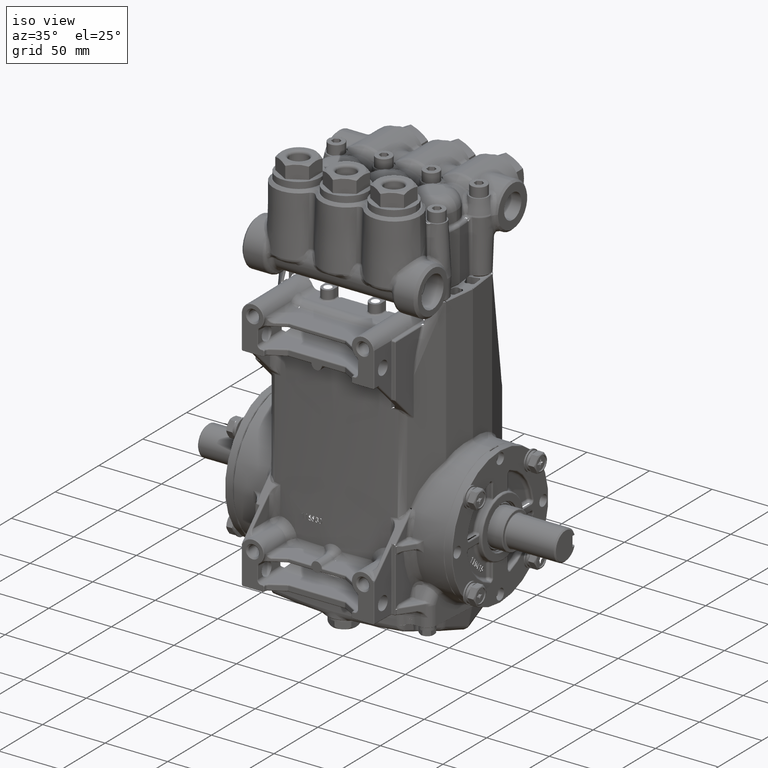
[diagram: clean part render]
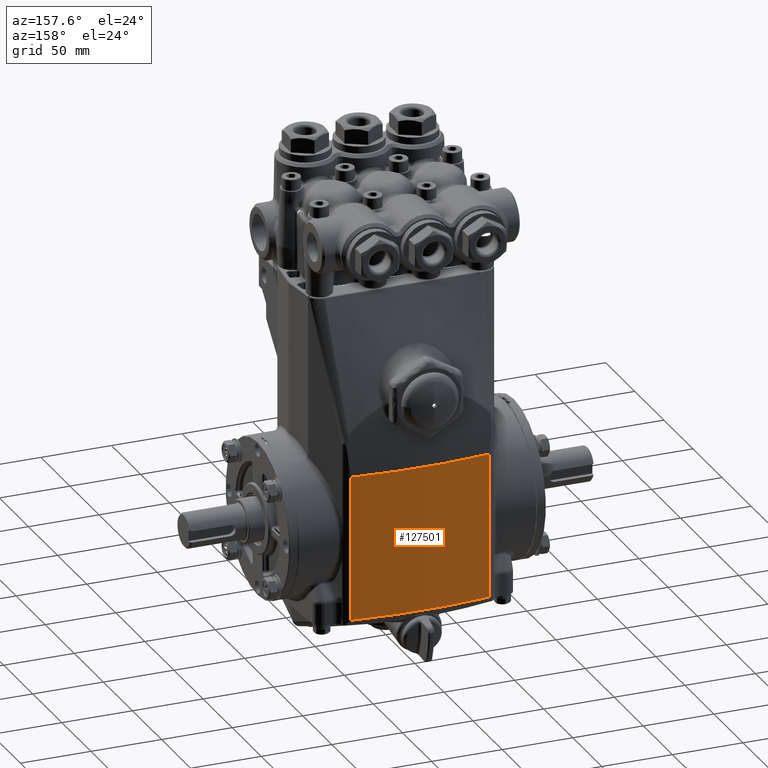
[diagram: tour spotlight — one face highlighted and labeled with its STEP entity id]
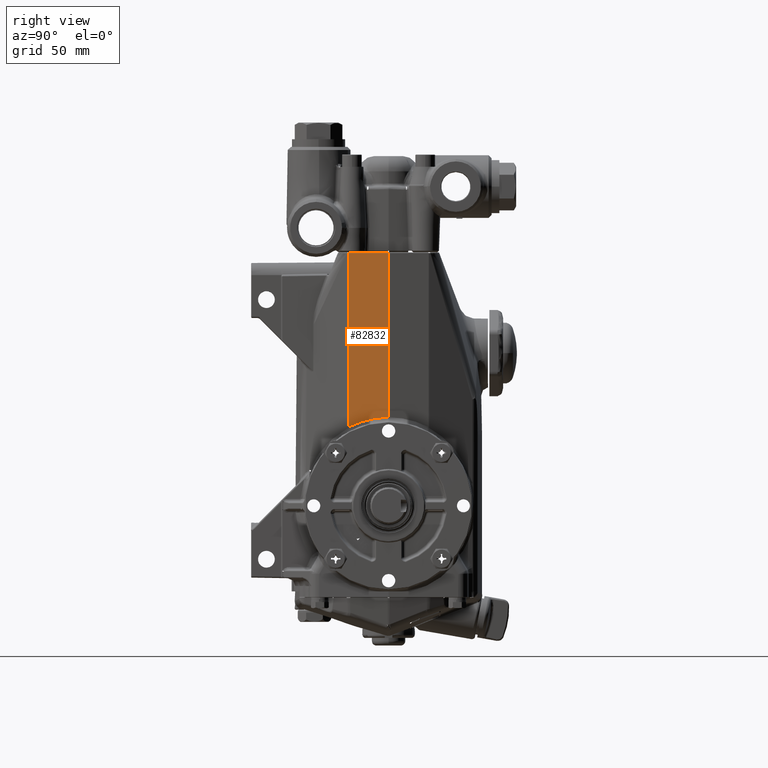
[diagram: tour spotlight — one face highlighted and labeled with its STEP entity id]
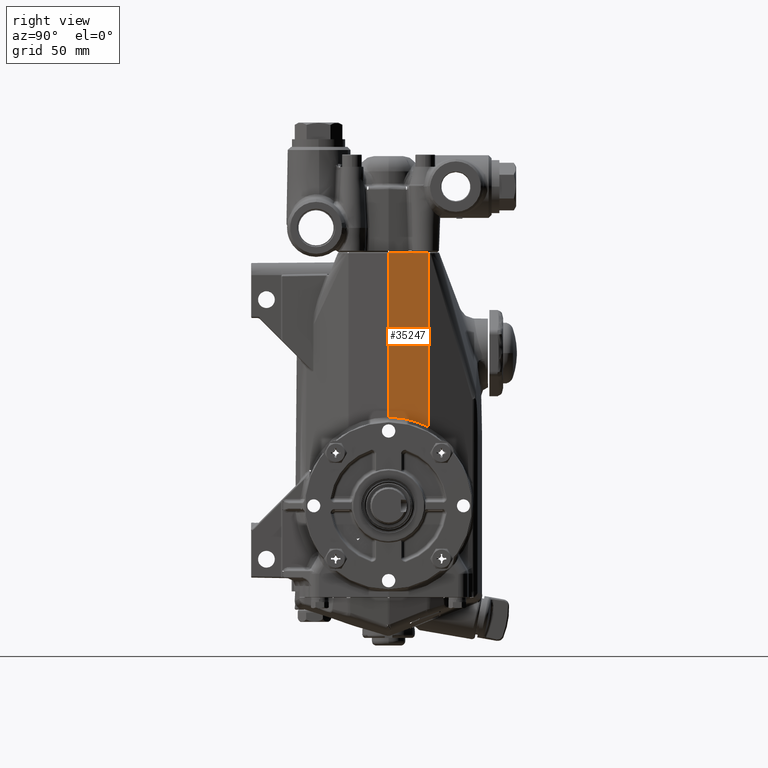
[diagram: tour spotlight — one face highlighted and labeled with its STEP entity id]
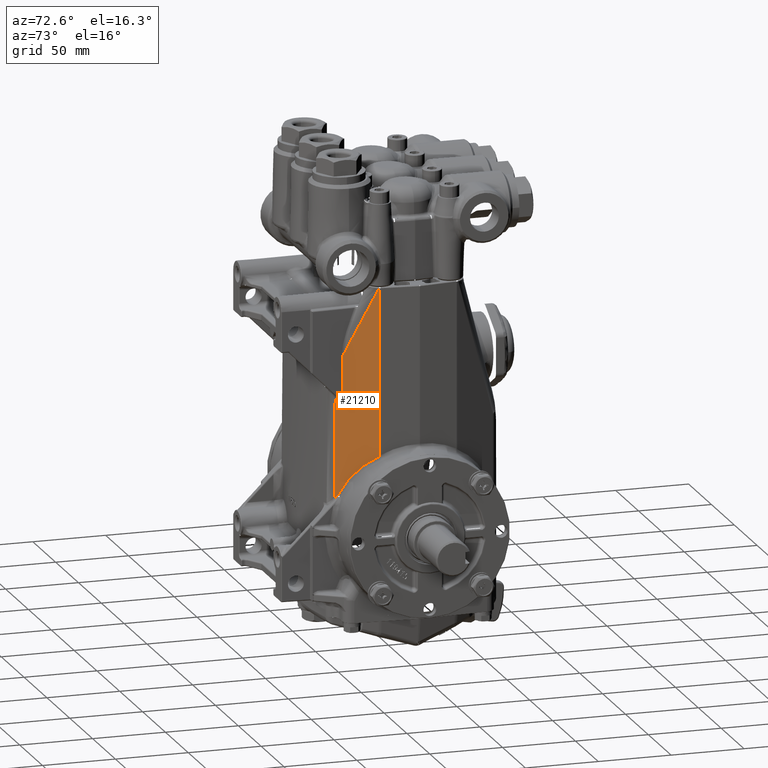
[diagram: tour spotlight — one face highlighted and labeled with its STEP entity id]
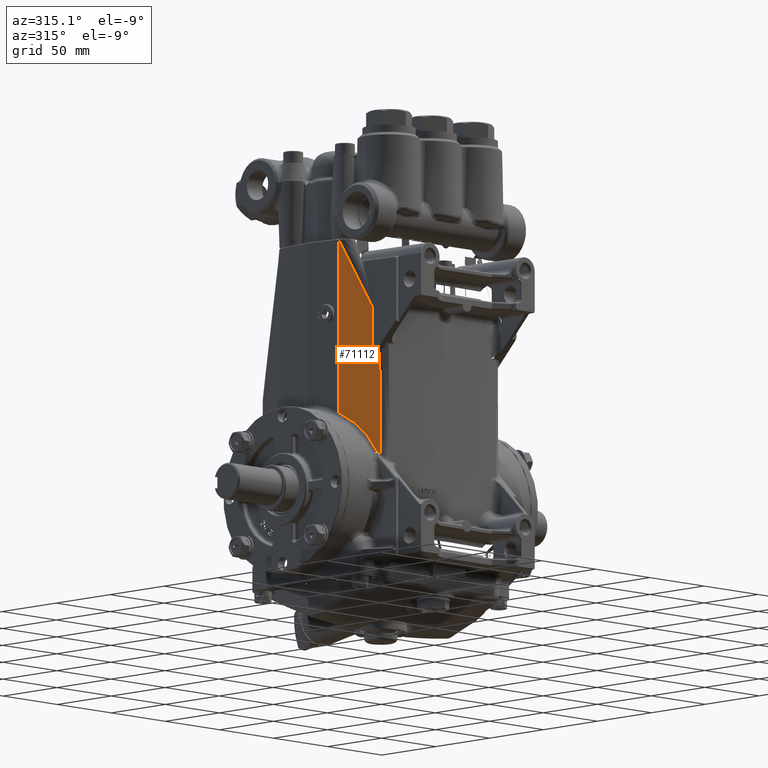
[diagram: tour spotlight — one face highlighted and labeled with its STEP entity id]
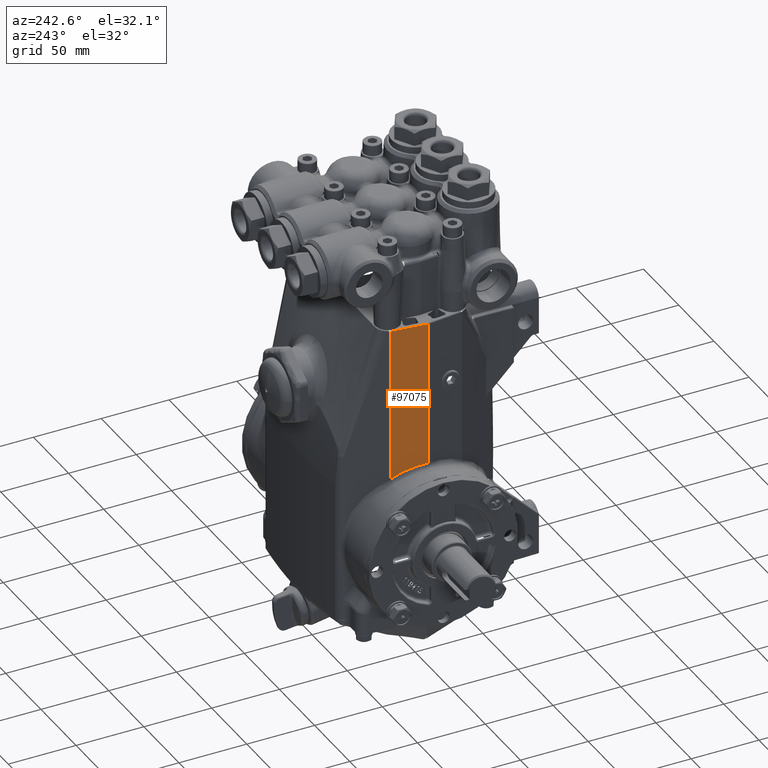
[diagram: tour spotlight — one face highlighted and labeled with its STEP entity id]
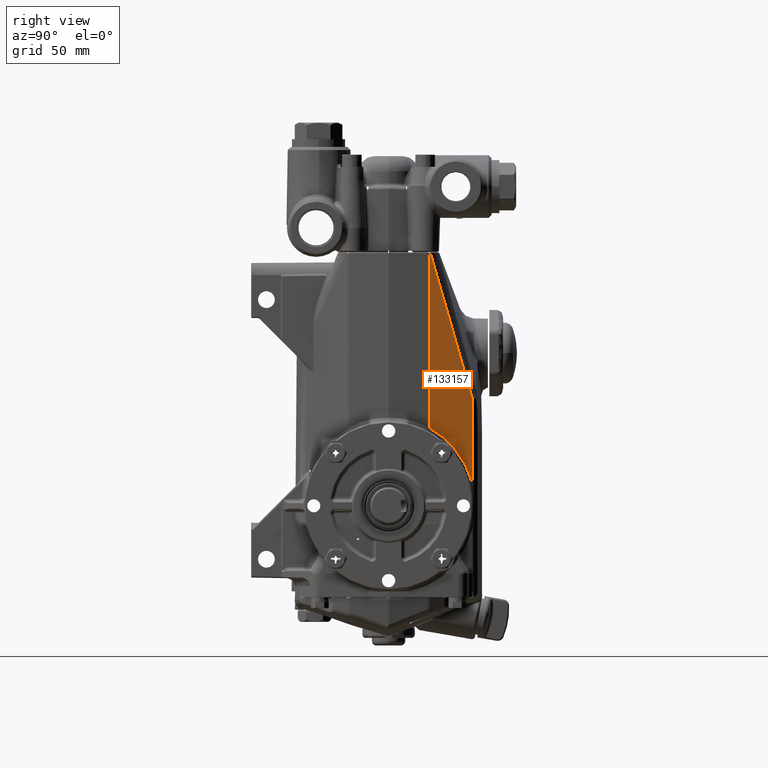
[diagram: tour spotlight — one face highlighted and labeled with its STEP entity id]
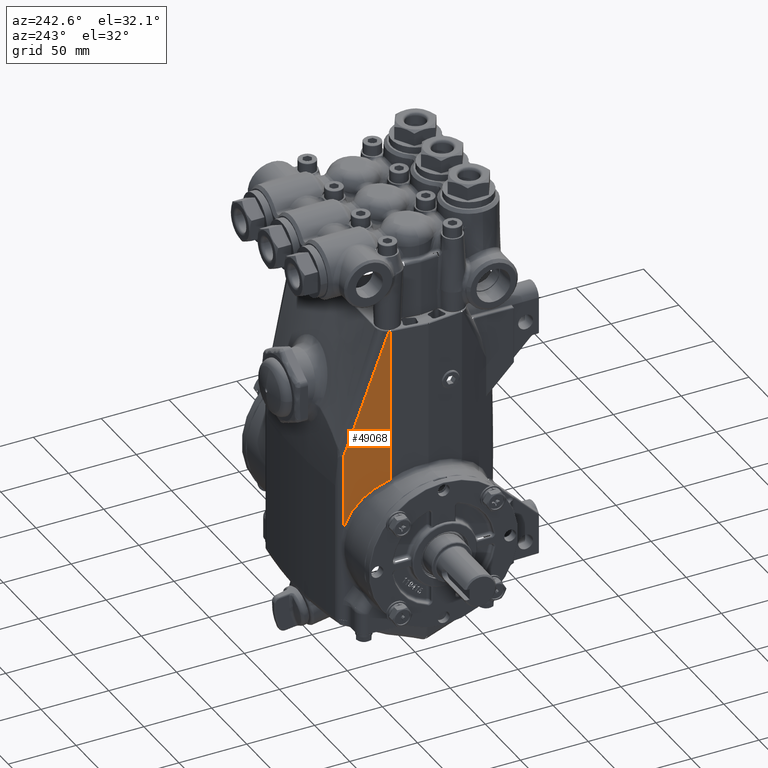
[diagram: tour spotlight — one face highlighted and labeled with its STEP entity id]
A machine part: a face-by-face anatomy tour. The part has 2640 B-rep faces; the first image is the clean iso view, then the 8 largest visible faces are spotlighted one at a time (largest first), each with its STEP entity span.

Face 1 — auxiliary view, entity #127501. In plain terms, the highlighted cylindrical surface (partial cylindrical patch) has radius 400 mm, axis along (-0, -0, -1).
Definition (entity closure, byte-faithful):
#7919 = AXIS2_PLACEMENT_3D ( 'NONE', #78113, #97040, #64852 ) ;
#8009 = ORIENTED_EDGE ( 'NONE', *, *, #24587, .T. ) ;
#8406 = FACE_OUTER_BOUND ( 'NONE', #83449, .T. ) ;
#12529 = LINE ( 'NONE', #119611, #132363 ) ;
#14948 = EDGE_CURVE ( 'NONE', #99284, #66368, #78595, .T. ) ;
#16690 = VERTEX_POINT ( 'NONE', #54375 ) ;
#24587 = EDGE_CURVE ( 'NONE', #16690, #71763, #119618, .T. ) ;
#35435 = EDGE_CURVE ( 'NONE', #71763, #66368, #122987, .T. ) ;
#37587 = CARTESIAN_POINT ( 'NONE',  ( 1.927892502559934051, 2.302806923614977741, 1.830708661417320915 ) ) ;
#38266 = CARTESIAN_POINT ( 'NONE',  ( -1.927892502559932941, 2.302806923614977741, 6.535433070866142558 ) ) ;
#54303 = CARTESIAN_POINT ( 'NONE',  ( -1.927892502559934051, 2.302806923614977741, 1.830708661417320915 ) ) ;
#54375 = CARTESIAN_POINT ( 'NONE',  ( 1.927892502559933607, 2.302806923614975521, -2.204724409448818978 ) ) ;
#57026 = ORIENTED_EDGE ( 'NONE', *, *, #127595, .F. ) ;
#60690 = DIRECTION ( 'NONE',  ( 0.000000000000000000, 0.000000000000000000, 1.000000000000000000 ) ) ;
#60744 = CARTESIAN_POINT ( 'NONE',  ( -1.927892502559933607, 2.302806923614975521, -2.204724409448818978 ) ) ;
#61545 = ORIENTED_EDGE ( 'NONE', *, *, #35435, .T. ) ;
#62686 = DIRECTION ( 'NONE',  ( -0.000000000000000000, -0.000000000000000000, 1.000000000000000000 ) ) ;
#64852 = DIRECTION ( 'NONE',  ( 1.000000000000000000, 0.000000000000000000, 0.000000000000000000 ) ) ;
#66368 = VERTEX_POINT ( 'NONE', #54303 ) ;
#71763 = VERTEX_POINT ( 'NONE', #60744 ) ;
#73856 = CARTESIAN_POINT ( 'NONE',  ( 0.000000000000000000, -13.32677165354330917, 1.830708661417320915 ) ) ;
#74166 = CYLINDRICAL_SURFACE ( 'NONE', #89896, 15.74803149606299080 ) ;
#78113 = CARTESIAN_POINT ( 'NONE',  ( 0.000000000000000000, -13.32677165354330917, -2.204724409448818978 ) ) ;
#78595 = CIRCLE ( 'NONE', #129939, 15.74803149606299257 ) ;
#82613 = CARTESIAN_POINT ( 'NONE',  ( 0.000000000000000000, -13.32677165354330917, 6.535433070866142558 ) ) ;
#83449 = EDGE_LOOP ( 'NONE', ( #130293, #57026, #8009, #61545 ) ) ;
#89896 = AXIS2_PLACEMENT_3D ( 'NONE', #82613, #136500, #105698 ) ;
#96545 = DIRECTION ( 'NONE',  ( -0.000000000000000000, 0.000000000000000000, 1.000000000000000000 ) ) ;
#97040 = DIRECTION ( 'NONE',  ( 0.000000000000000000, 0.000000000000000000, 1.000000000000000000 ) ) ;
#99284 = VERTEX_POINT ( 'NONE', #37587 ) ;
#105698 = DIRECTION ( 'NONE',  ( -1.000000000000000000, 0.000000000000000000, 0.000000000000000000 ) ) ;
#119611 = CARTESIAN_POINT ( 'NONE',  ( 1.927892502559932941, 2.302806923614977741, 6.535433070866142558 ) ) ;
#119618 = CIRCLE ( 'NONE', #7919, 15.74803149606299080 ) ;
#122987 = LINE ( 'NONE', #38266, #129648 ) ;
#126391 = DIRECTION ( 'NONE',  ( 1.000000000000000000, 0.000000000000000000, 0.000000000000000000 ) ) ;
#127501 = ADVANCED_FACE ( 'NONE', ( #8406 ), #74166, .T. ) ;
#127595 = EDGE_CURVE ( 'NONE', #16690, #99284, #12529, .T. ) ;
#129648 = VECTOR ( 'NONE', #60690, 39.37007874015748143 ) ;
#129939 = AXIS2_PLACEMENT_3D ( 'NONE', #73856, #62686, #126391 ) ;
#130293 = ORIENTED_EDGE ( 'NONE', *, *, #14948, .F. ) ;
#132363 = VECTOR ( 'NONE', #96545, 39.37007874015748143 ) ;
#136500 = DIRECTION ( 'NONE',  ( -0.000000000000000000, -0.000000000000000000, -1.000000000000000000 ) ) ;

Face 2 — right view, entity #82832. In plain terms, the highlighted planar face has unit normal (-0.9932, 0.1166, 0).
Definition (entity closure, byte-faithful):
#1004 = CARTESIAN_POINT ( 'NONE',  ( 2.717346821947831170, 1.734800175810613622E-15, 6.535433070866142558 ) ) ;
#8959 = CARTESIAN_POINT ( 'NONE',  ( 2.716268660788596634, -0.009182339206149817135, 6.515748031496061188 ) ) ;
#9581 = DIRECTION ( 'NONE',  ( 0.1166157079181238954, 0.9931771124360219138, 0.000000000000000000 ) ) ;
#19462 = CARTESIAN_POINT ( 'NONE',  ( 2.716268660788596634, -0.009182339206149817135, 2.283349175545158261 ) ) ;
#22597 = LINE ( 'NONE', #65315, #102756 ) ;
#29051 = VERTEX_POINT ( 'NONE', #100500 ) ;
#32448 = PLANE ( 'NONE',  #62443 ) ;
#35059 = VERTEX_POINT ( 'NONE', #43714 ) ;
#39069 = CARTESIAN_POINT ( 'NONE',  ( 2.634086722082800591, -0.7090985171817205668, 2.194941583661010664 ) ) ;
#41138 = CARTESIAN_POINT ( 'NONE',  ( 2.596958048149761833, -1.025311056846892166, 2.033350361800958517 ) ) ;
#41772 = LINE ( 'NONE', #105486, #89707 ) ;
#43714 = CARTESIAN_POINT ( 'NONE',  ( 2.596958048149761833, -1.025311056846892166, 2.033350361800958517 ) ) ;
#48451 = ORIENTED_EDGE ( 'NONE', *, *, #71875, .F. ) ;
#48984 = ORIENTED_EDGE ( 'NONE', *, *, #135861, .F. ) ;
#50313 = VECTOR ( 'NONE', #68325, 39.37007874015748143 ) ;
#52763 = DIRECTION ( 'NONE',  ( 0.1166157079181238954, 0.9931771124360219138, 0.000000000000000000 ) ) ;
#54334 = ORIENTED_EDGE ( 'NONE', *, *, #65986, .F. ) ;
#59069 = VERTEX_POINT ( 'NONE', #66978 ) ;
#62443 = AXIS2_PLACEMENT_3D ( 'NONE', #1004, #65361, #52763 ) ;
#65315 = CARTESIAN_POINT ( 'NONE',  ( 2.596958048149761833, -1.025311056846892166, 6.535433070866142558 ) ) ;
#65361 = DIRECTION ( 'NONE',  ( -0.9931771124360221359, 0.1166157079181239231, 0.000000000000000000 ) ) ;
#65986 = EDGE_CURVE ( 'NONE', #35059, #59069, #22597, .T. ) ;
#66978 = CARTESIAN_POINT ( 'NONE',  ( 2.596958048149761833, -1.025311056846892166, 6.515748031496061188 ) ) ;
#68325 = DIRECTION ( 'NONE',  ( 0.000000000000000000, 0.000000000000000000, -1.000000000000000000 ) ) ;
#68995 = CARTESIAN_POINT ( 'NONE',  ( 2.716268660788596634, -0.009182339206149817135, 6.535433070866142558 ) ) ;
#71875 = EDGE_CURVE ( 'NONE', #59069, #124047, #41772, .T. ) ;
#73338 = CARTESIAN_POINT ( 'NONE',  ( 2.674575045852474631, -0.3642729597433267963, 2.279779241343228957 ) ) ;
#74557 =( BOUNDED_CURVE ( )  B_SPLINE_CURVE ( 3, ( #19462, #73338, #39069, #41138 ),
 .UNSPECIFIED., .F., .F. ) 
 B_SPLINE_CURVE_WITH_KNOTS ( ( 4, 4 ),
 ( 1.580849574406080205, 2.043221746822089901 ),
 .UNSPECIFIED. ) 
 CURVE ( )  GEOMETRIC_REPRESENTATION_ITEM ( )  RATIONAL_B_SPLINE_CURVE ( ( 1.000000000000000000, 0.9822635394635153006, 0.9822635394635153006, 1.000000000000000000 ) ) 
 REPRESENTATION_ITEM ( '' )  );
#82832 = ADVANCED_FACE ( 'NONE', ( #118531 ), #32448, .F. ) ;
#89707 = VECTOR ( 'NONE', #9581, 39.37007874015748854 ) ;
#89997 = LINE ( 'NONE', #68995, #50313 ) ;
#100500 = CARTESIAN_POINT ( 'NONE',  ( 2.716268660788596634, -0.009182339206149817135, 2.283349175545158261 ) ) ;
#102756 = VECTOR ( 'NONE', #107999, 39.37007874015748143 ) ;
#105486 = CARTESIAN_POINT ( 'NONE',  ( 2.716268660788596634, -0.009182339206149740807, 6.515748031496061188 ) ) ;
#107999 = DIRECTION ( 'NONE',  ( -0.000000000000000000, -0.000000000000000000, 1.000000000000000000 ) ) ;
#118531 = FACE_OUTER_BOUND ( 'NONE', #131586, .T. ) ;
#124047 = VERTEX_POINT ( 'NONE', #8959 ) ;
#124739 = ORIENTED_EDGE ( 'NONE', *, *, #134673, .F. ) ;
#131586 = EDGE_LOOP ( 'NONE', ( #48984, #48451, #54334, #124739 ) ) ;
#134673 = EDGE_CURVE ( 'NONE', #29051, #35059, #74557, .T. ) ;
#135861 = EDGE_CURVE ( 'NONE', #124047, #29051, #89997, .T. ) ;

Face 3 — right view, entity #35247. In plain terms, the highlighted planar face has unit normal (-0.9932, -0.1166, 0).
Definition (entity closure, byte-faithful):
#2988 = CARTESIAN_POINT ( 'NONE',  ( 2.716268660788596634, 0.009182339206153264030, 6.535433070866142558 ) ) ;
#12337 = ORIENTED_EDGE ( 'NONE', *, *, #65203, .F. ) ;
#12521 = CARTESIAN_POINT ( 'NONE',  ( 2.596958048149761833, 1.025311056846890612, 2.033350361800960293 ) ) ;
#20898 = DIRECTION ( 'NONE',  ( 0.000000000000000000, 0.000000000000000000, -1.000000000000000000 ) ) ;
#24419 = CARTESIAN_POINT ( 'NONE',  ( 2.596958048149761833, 1.025311056846890612, 2.033350361800960293 ) ) ;
#24992 = DIRECTION ( 'NONE',  ( -0.1166157079181241174, 0.9931771124360219138, 0.000000000000000000 ) ) ;
#25176 =( BOUNDED_CURVE ( )  B_SPLINE_CURVE ( 3, ( #24419, #89490, #36304, #109834 ),
 .UNSPECIFIED., .F., .F. ) 
 B_SPLINE_CURVE_WITH_KNOTS ( ( 4, 4 ),
 ( 4.239963560357496775, 4.702335732773504695 ),
 .UNSPECIFIED. ) 
 CURVE ( )  GEOMETRIC_REPRESENTATION_ITEM ( )  RATIONAL_B_SPLINE_CURVE ( ( 1.000000000000000000, 0.9822635394635153006, 0.9822635394635153006, 1.000000000000000000 ) ) 
 REPRESENTATION_ITEM ( '' )  );
#29167 = CARTESIAN_POINT ( 'NONE',  ( 2.716268660788596634, 0.009182339206153264030, 6.515748031496061188 ) ) ;
#29471 = ORIENTED_EDGE ( 'NONE', *, *, #69577, .F. ) ;
#30688 = LINE ( 'NONE', #42584, #98415 ) ;
#35247 = ADVANCED_FACE ( 'NONE', ( #35966 ), #100366, .F. ) ;
#35966 = FACE_OUTER_BOUND ( 'NONE', #47254, .T. ) ;
#36304 = CARTESIAN_POINT ( 'NONE',  ( 2.674575045852474187, 0.3642729597433290167, 2.279779241343228069 ) ) ;
#36881 = CARTESIAN_POINT ( 'NONE',  ( 2.596958048149761833, 1.025311056846890612, 6.515748031496061188 ) ) ;
#40224 = AXIS2_PLACEMENT_3D ( 'NONE', #101064, #58381, #121384 ) ;
#42584 = CARTESIAN_POINT ( 'NONE',  ( 2.596958048149761833, 1.025311056846890612, 6.535433070866142558 ) ) ;
#45656 = DIRECTION ( 'NONE',  ( -0.000000000000000000, -0.000000000000000000, 1.000000000000000000 ) ) ;
#45760 = VERTEX_POINT ( 'NONE', #111884 ) ;
#47254 = EDGE_LOOP ( 'NONE', ( #29471, #111685, #12337, #74401 ) ) ;
#56160 = LINE ( 'NONE', #2988, #102660 ) ;
#58381 = DIRECTION ( 'NONE',  ( -0.9931771124360220249, -0.1166157079181241313, 0.000000000000000000 ) ) ;
#65203 = EDGE_CURVE ( 'NONE', #45760, #82399, #56160, .T. ) ;
#69577 = EDGE_CURVE ( 'NONE', #135208, #127090, #30688, .T. ) ;
#74401 = ORIENTED_EDGE ( 'NONE', *, *, #77807, .F. ) ;
#77483 = VECTOR ( 'NONE', #24992, 39.37007874015748854 ) ;
#77807 = EDGE_CURVE ( 'NONE', #127090, #45760, #25176, .T. ) ;
#82399 = VERTEX_POINT ( 'NONE', #29167 ) ;
#88691 = LINE ( 'NONE', #36881, #77483 ) ;
#89490 = CARTESIAN_POINT ( 'NONE',  ( 2.634086722082800147, 0.7090985171817213439, 2.194941583661010220 ) ) ;
#98335 = EDGE_CURVE ( 'NONE', #82399, #135208, #88691, .T. ) ;
#98415 = VECTOR ( 'NONE', #20898, 39.37007874015748143 ) ;
#100366 = PLANE ( 'NONE',  #40224 ) ;
#101064 = CARTESIAN_POINT ( 'NONE',  ( 2.595635456472273450, 1.036575129300169706, 6.535433070866142558 ) ) ;
#102660 = VECTOR ( 'NONE', #45656, 39.37007874015748143 ) ;
#109834 = CARTESIAN_POINT ( 'NONE',  ( 2.716268660788596634, 0.009182339206153264030, 2.283349175545157816 ) ) ;
#111685 = ORIENTED_EDGE ( 'NONE', *, *, #98335, .F. ) ;
#111884 = CARTESIAN_POINT ( 'NONE',  ( 2.716268660788596634, 0.009182339206153264030, 2.283349175545157816 ) ) ;
#121384 = DIRECTION ( 'NONE',  ( -0.1166157079181241174, 0.9931771124360219138, 0.000000000000000000 ) ) ;
#127090 = VERTEX_POINT ( 'NONE', #12521 ) ;
#130325 = CARTESIAN_POINT ( 'NONE',  ( 2.596958048149761833, 1.025311056846890612, 6.515748031496061188 ) ) ;
#135208 = VERTEX_POINT ( 'NONE', #130325 ) ;

Face 4 — auxiliary view, entity #21210. In plain terms, the highlighted planar face has unit normal (-0.9199, 0.3922, 0).
Definition (entity closure, byte-faithful):
#4274 = VERTEX_POINT ( 'NONE', #42872 ) ;
#8241 = VERTEX_POINT ( 'NONE', #128072 ) ;
#11964 = B_SPLINE_CURVE_WITH_KNOTS ( 'NONE', 3,
 ( #114744, #30008, #72736, #104913, #60869, #82534, #103562, #125241, #17477, #73398 ),
 .UNSPECIFIED., .F., .F.,
 ( 4, 3, 3, 4 ),
 ( 0.4066979116981916387, 0.4324590888153141965, 0.5895890021034427830, 0.5979794710454728879 ),
 .UNSPECIFIED. ) ;
#13276 = ORIENTED_EDGE ( 'NONE', *, *, #54741, .F. ) ;
#17215 = CARTESIAN_POINT ( 'NONE',  ( 2.138993832765264891, -2.107703135970783848, 3.533790478023204784 ) ) ;
#17477 = CARTESIAN_POINT ( 'NONE',  ( 2.580032520508785510, -1.073174380943301420, 6.488274339080471798 ) ) ;
#18651 = AXIS2_PLACEMENT_3D ( 'NONE', #20524, #117100, #21214 ) ;
#19937 = CARTESIAN_POINT ( 'NONE',  ( 2.128387853620480108, -2.132581203826097838, 0.8555136966284823119 ) ) ;
#20524 = CARTESIAN_POINT ( 'NONE',  ( 2.595635456472272562, -1.036575129300173037, 6.535433070866142558 ) ) ;
#21210 = ADVANCED_FACE ( 'NONE', ( #126930 ), #31000, .F. ) ;
#21214 = DIRECTION ( 'NONE',  ( 0.3921676722171311691, 0.9198937530322708334, 0.000000000000000000 ) ) ;
#21787 = LINE ( 'NONE', #115626, #53622 ) ;
#22858 = CARTESIAN_POINT ( 'NONE',  ( 2.591187704889624133, -1.047008061909806331, 2.004706045346182908 ) ) ;
#29412 = VERTEX_POINT ( 'NONE', #129597 ) ;
#30008 = CARTESIAN_POINT ( 'NONE',  ( 2.231858953714732863, -1.889872726459866037, 4.761165765727836785 ) ) ;
#30014 = VERTEX_POINT ( 'NONE', #19937 ) ;
#31000 = PLANE ( 'NONE',  #18651 ) ;
#34679 = CARTESIAN_POINT ( 'NONE',  ( 2.141991423858253807, -2.100671793216303485, 0.8823105689656683959 ) ) ;
#36593 = VERTEX_POINT ( 'NONE', #73419 ) ;
#39055 = VECTOR ( 'NONE', #65513, 39.37007874015748143 ) ;
#42872 = CARTESIAN_POINT ( 'NONE',  ( 2.166223450982955878, -2.043831589511343250, 0.9195003387787634708 ) ) ;
#51762 = ORIENTED_EDGE ( 'NONE', *, *, #63804, .F. ) ;
#51801 = CARTESIAN_POINT ( 'NONE',  ( 2.134597240781764160, -2.118016065329262787, 2.423736094940602381 ) ) ;
#53622 = VECTOR ( 'NONE', #105133, 39.37007874015748143 ) ;
#54304 = CARTESIAN_POINT ( 'NONE',  ( 2.128387853620480108, -2.132581203826097838, 0.8555136966284823119 ) ) ;
#54305 = CARTESIAN_POINT ( 'NONE',  ( 2.216614833355293968, -1.925630317109396250, 6.535433070866142558 ) ) ;
#54741 = EDGE_CURVE ( 'NONE', #85803, #8241, #105454, .T. ) ;
#55500 = ORIENTED_EDGE ( 'NONE', *, *, #80805, .F. ) ;
#57832 = CARTESIAN_POINT ( 'NONE',  ( 2.166223450982955878, -2.043831589511343250, 0.9195003387787634708 ) ) ;
#60869 = CARTESIAN_POINT ( 'NONE',  ( 2.355328477833127820, -1.600254657524562196, 5.442022278663460888 ) ) ;
#61649 = CARTESIAN_POINT ( 'NONE',  ( 2.129724929756505958, -2.129444871915043169, 1.193245431040092397 ) ) ;
#63804 = EDGE_CURVE ( 'NONE', #29412, #4274, #122252, .T. ) ;
#64321 = EDGE_CURVE ( 'NONE', #74361, #36593, #71432, .T. ) ;
#64501 = B_SPLINE_CURVE_WITH_KNOTS ( 'NONE', 3,
 ( #135151, #61649, #137207, #70768, #51801, #113471, #124661 ),
 .UNSPECIFIED., .F., .F.,
 ( 4, 3, 4 ),
 ( 0.07773400629815886698, 0.1034704757864033792, 0.1457657046736837714 ),
 .UNSPECIFIED. ) ;
#65512 = CARTESIAN_POINT ( 'NONE',  ( 2.154733538993457653, -2.070783067184847059, 0.9038597242117943908 ) ) ;
#65513 = DIRECTION ( 'NONE',  ( 0.000000000000000000, 0.000000000000000000, 1.000000000000000000 ) ) ;
#66881 = CARTESIAN_POINT ( 'NONE',  ( 2.166223450982955878, -2.043831589511343250, 0.9195003387787634708 ) ) ;
#70148 = EDGE_CURVE ( 'NONE', #4274, #30014, #91971, .T. ) ;
#70768 = CARTESIAN_POINT ( 'NONE',  ( 2.132399469549731919, -2.123171299098305376, 1.868708889887299440 ) ) ;
#71432 = LINE ( 'NONE', #104327, #100237 ) ;
#72130 = DIRECTION ( 'NONE',  ( 0.3921676722171311691, 0.9198937530322708334, 0.000000000000000000 ) ) ;
#72736 = CARTESIAN_POINT ( 'NONE',  ( 2.247103074074171314, -1.854115135810335380, 4.845227470061820974 ) ) ;
#73398 = CARTESIAN_POINT ( 'NONE',  ( 2.584997562200899157, -1.061528059332194740, 6.515653410938162082 ) ) ;
#73419 = CARTESIAN_POINT ( 'NONE',  ( 2.591187704889624133, -1.047008061909806331, 6.515748031496061188 ) ) ;
#74361 = VERTEX_POINT ( 'NONE', #109607 ) ;
#78845 = CARTESIAN_POINT ( 'NONE',  ( 2.400553909150939358, -1.494170972671451825, 1.760832226594646555 ) ) ;
#80805 = EDGE_CURVE ( 'NONE', #8241, #74361, #11964, .T. ) ;
#80830 = ORIENTED_EDGE ( 'NONE', *, *, #83233, .F. ) ;
#82534 = CARTESIAN_POINT ( 'NONE',  ( 2.477121153725040603, -1.314569911801759083, 5.920783091097432838 ) ) ;
#82960 = ORIENTED_EDGE ( 'NONE', *, *, #70148, .F. ) ;
#83233 = EDGE_CURVE ( 'NONE', #36593, #29412, #21787, .T. ) ;
#85803 = VERTEX_POINT ( 'NONE', #109943 ) ;
#90831 = ORIENTED_EDGE ( 'NONE', *, *, #134278, .F. ) ;
#91240 = EDGE_LOOP ( 'NONE', ( #80830, #105943, #55500, #13276, #138118, #90831, #82960, #51762 ) ) ;
#91971 =( BOUNDED_CURVE ( )  B_SPLINE_CURVE ( 3, ( #66881, #65512, #34679, #54304 ),
 .UNSPECIFIED., .F., .T. ) 
 B_SPLINE_CURVE_WITH_KNOTS ( ( 4, 4 ),
 ( 0.6641927721116175354, 1.014875295558136825 ),
 .UNSPECIFIED. ) 
 CURVE ( )  GEOMETRIC_REPRESENTATION_ITEM ( )  RATIONAL_B_SPLINE_CURVE ( ( 1.000000000000000000, 0.9897780434150713624, 0.9897780434150713624, 1.000000000000000000 ) ) 
 REPRESENTATION_ITEM ( '' )  );
#100237 = VECTOR ( 'NONE', #72130, 39.37007874015748143 ) ;
#103562 = CARTESIAN_POINT ( 'NONE',  ( 2.570102437124558215, -1.096467024165516335, 6.433516195365089452 ) ) ;
#104327 = CARTESIAN_POINT ( 'NONE',  ( 2.591187704889624133, -1.047008061909806331, 6.515748031496061188 ) ) ;
#104913 = CARTESIAN_POINT ( 'NONE',  ( 2.262347194433610209, -1.818357545160804944, 4.929289174395804274 ) ) ;
#105133 = DIRECTION ( 'NONE',  ( 0.000000000000000000, 0.000000000000000000, -1.000000000000000000 ) ) ;
#105454 = LINE ( 'NONE', #54305, #39055 ) ;
#105943 = ORIENTED_EDGE ( 'NONE', *, *, #64321, .F. ) ;
#109607 = CARTESIAN_POINT ( 'NONE',  ( 2.584997562200899157, -1.061528059332194740, 6.515653410938162082 ) ) ;
#109943 = CARTESIAN_POINT ( 'NONE',  ( 2.216614833355293968, -1.925630317109396028, 3.507425794507577965 ) ) ;
#110341 = CARTESIAN_POINT ( 'NONE',  ( 2.216614833355293968, -1.925630317109396028, 3.507425794507577965 ) ) ;
#113471 = CARTESIAN_POINT ( 'NONE',  ( 2.136795361413286187, -2.112860011986271935, 2.978763290998678315 ) ) ;
#114744 = CARTESIAN_POINT ( 'NONE',  ( 2.216614833355294412, -1.925630317109396028, 4.677104061393853485 ) ) ;
#115626 = CARTESIAN_POINT ( 'NONE',  ( 2.591187704889624133, -1.047008061909806331, 6.535433070866142558 ) ) ;
#115836 =( BOUNDED_CURVE ( )  B_SPLINE_CURVE ( 3, ( #17215, #122888, #134774, #110341 ),
 .UNSPECIFIED., .F., .F. ) 
 B_SPLINE_CURVE_WITH_KNOTS ( ( 4, 4 ),
 ( 2.219644354624774163, 3.429037800665981628 ),
 .UNSPECIFIED. ) 
 CURVE ( )  GEOMETRIC_REPRESENTATION_ITEM ( )  RATIONAL_B_SPLINE_CURVE ( ( 1.000000000000000000, 0.8817830348324077194, 0.8817830348324077194, 1.000000000000000000 ) ) 
 REPRESENTATION_ITEM ( '' )  );
#116352 = CARTESIAN_POINT ( 'NONE',  ( 2.138993832765264891, -2.107703135970783848, 3.533790478023204784 ) ) ;
#116634 = VERTEX_POINT ( 'NONE', #116352 ) ;
#117100 = DIRECTION ( 'NONE',  ( -0.9198937530322709444, 0.3921676722171312246, 0.000000000000000000 ) ) ;
#120831 = CARTESIAN_POINT ( 'NONE',  ( 2.253661626852426991, -1.838730971947069470, 1.385722222551783789 ) ) ;
#122252 =( BOUNDED_CURVE ( )  B_SPLINE_CURVE ( 3, ( #22858, #78845, #120831, #57832 ),
 .UNSPECIFIED., .F., .T. ) 
 B_SPLINE_CURVE_WITH_KNOTS ( ( 4, 4 ),
 ( 2.070085784873913592, 2.727152290320088657 ),
 .UNSPECIFIED. ) 
 CURVE ( )  GEOMETRIC_REPRESENTATION_ITEM ( )  RATIONAL_B_SPLINE_CURVE ( ( 1.000000000000000000, 0.9643444099698005312, 0.9643444099698005312, 1.000000000000000000 ) ) 
 REPRESENTATION_ITEM ( '' )  );
#122888 = CARTESIAN_POINT ( 'NONE',  ( 2.187272392140987343, -1.994457837285035007, 3.445598852628056985 ) ) ;
#124661 = CARTESIAN_POINT ( 'NONE',  ( 2.138993832765264891, -2.107703135970783848, 3.533790478023204784 ) ) ;
#125241 = CARTESIAN_POINT ( 'NONE',  ( 2.575067478816672306, -1.084820702554408767, 6.460895267222780625 ) ) ;
#126930 = FACE_OUTER_BOUND ( 'NONE', #91240, .T. ) ;
#128072 = CARTESIAN_POINT ( 'NONE',  ( 2.216614833355294412, -1.925630317109396028, 4.677104061393853485 ) ) ;
#129597 = CARTESIAN_POINT ( 'NONE',  ( 2.591187704889624133, -1.047008061909806331, 2.004706045346182908 ) ) ;
#134278 = EDGE_CURVE ( 'NONE', #30014, #116634, #64501, .T. ) ;
#134774 = CARTESIAN_POINT ( 'NONE',  ( 2.216614833355293968, -1.925630317109397360, 3.435632423822571724 ) ) ;
#135151 = CARTESIAN_POINT ( 'NONE',  ( 2.128387853620480108, -2.132581203826097838, 0.8555136966284823119 ) ) ;
#135863 = EDGE_CURVE ( 'NONE', #116634, #85803, #115836, .T. ) ;
#137207 = CARTESIAN_POINT ( 'NONE',  ( 2.131062134967474542, -2.126308237237487742, 1.530977162129229630 ) ) ;
#138118 = ORIENTED_EDGE ( 'NONE', *, *, #135863, .F. ) ;

Face 5 — auxiliary view, entity #71112. In plain terms, the highlighted planar face has unit normal (0.9199, 0.3922, -0).
Definition (entity closure, byte-faithful):
#159 = ORIENTED_EDGE ( 'NONE', *, *, #56667, .T. ) ;
#805 = ORIENTED_EDGE ( 'NONE', *, *, #23155, .T. ) ;
#3544 = CARTESIAN_POINT ( 'NONE',  ( -2.166223450982955878, -2.043831589511343250, 0.9195003387787634708 ) ) ;
#5278 = ORIENTED_EDGE ( 'NONE', *, *, #112582, .T. ) ;
#5679 = CARTESIAN_POINT ( 'NONE',  ( -2.247103074074171314, -1.854115135810335380, 4.845227470061820974 ) ) ;
#5889 = CARTESIAN_POINT ( 'NONE',  ( -2.129724929756505958, -2.129444871915043169, 1.193245431040092397 ) ) ;
#5986 = CARTESIAN_POINT ( 'NONE',  ( -2.591187704889624133, -1.047008061909806331, 2.004706045346182908 ) ) ;
#7045 = CARTESIAN_POINT ( 'NONE',  ( -2.231858953714732863, -1.889872726459866037, 4.761165765727836785 ) ) ;
#8709 = ORIENTED_EDGE ( 'NONE', *, *, #92463, .T. ) ;
#18250 = CARTESIAN_POINT ( 'NONE',  ( -2.216614833355294412, -1.925630317109396028, 4.677104061393853485 ) ) ;
#19377 = CARTESIAN_POINT ( 'NONE',  ( -2.591187704889624133, -1.047008061909806331, 6.515748031496061188 ) ) ;
#19669 = EDGE_CURVE ( 'NONE', #120566, #108112, #51533, .T. ) ;
#23155 = EDGE_CURVE ( 'NONE', #25396, #93455, #54397, .T. ) ;
#24410 = EDGE_CURVE ( 'NONE', #99951, #25396, #108801, .T. ) ;
#25199 = CARTESIAN_POINT ( 'NONE',  ( -2.128387853620480108, -2.132581203826097838, 0.8555136966284823119 ) ) ;
#25396 = VERTEX_POINT ( 'NONE', #93609 ) ;
#25674 = CARTESIAN_POINT ( 'NONE',  ( -2.216614833355294412, -1.925630317109396028, 4.677104061393853485 ) ) ;
#27358 = ORIENTED_EDGE ( 'NONE', *, *, #24410, .T. ) ;
#28470 = LINE ( 'NONE', #19377, #71456 ) ;
#30052 = EDGE_CURVE ( 'NONE', #93455, #31557, #74512, .T. ) ;
#31557 = VERTEX_POINT ( 'NONE', #25674 ) ;
#35018 = CARTESIAN_POINT ( 'NONE',  ( -2.141991423858253807, -2.100671793216303485, 0.8823105689656683959 ) ) ;
#38230 = CARTESIAN_POINT ( 'NONE',  ( -2.400553909150939358, -1.494170972671451825, 1.760832226594646555 ) ) ;
#40599 = CARTESIAN_POINT ( 'NONE',  ( -2.575067478816672306, -1.084820702554408767, 6.460895267222780625 ) ) ;
#42308 = DIRECTION ( 'NONE',  ( 0.000000000000000000, 0.000000000000000000, 1.000000000000000000 ) ) ;
#42783 = PLANE ( 'NONE',  #47173 ) ;
#42867 = CARTESIAN_POINT ( 'NONE',  ( -2.132399469549731919, -2.123171299098305376, 1.868708889887299440 ) ) ;
#43868 = CARTESIAN_POINT ( 'NONE',  ( -2.138993832765264891, -2.107703135970783848, 3.533790478023204784 ) ) ;
#47173 = AXIS2_PLACEMENT_3D ( 'NONE', #85486, #55357, #95985 ) ;
#48906 = CARTESIAN_POINT ( 'NONE',  ( -2.591187704889624133, -1.047008061909806331, 6.535433070866142558 ) ) ;
#49744 = CARTESIAN_POINT ( 'NONE',  ( -2.580032520508785510, -1.073174380943301420, 6.488274339080471798 ) ) ;
#51533 =( BOUNDED_CURVE ( )  B_SPLINE_CURVE ( 3, ( #135529, #38230, #73196, #114523 ),
 .UNSPECIFIED., .F., .T. ) 
 B_SPLINE_CURVE_WITH_KNOTS ( ( 4, 4 ),
 ( 2.070085784873913592, 2.727152290320088657 ),
 .UNSPECIFIED. ) 
 CURVE ( )  GEOMETRIC_REPRESENTATION_ITEM ( )  RATIONAL_B_SPLINE_CURVE ( ( 1.000000000000000000, 0.9643444099698005312, 0.9643444099698005312, 1.000000000000000000 ) ) 
 REPRESENTATION_ITEM ( '' )  );
#52235 = DIRECTION ( 'NONE',  ( -0.3921676722171311691, 0.9198937530322708334, 0.000000000000000000 ) ) ;
#53165 = ORIENTED_EDGE ( 'NONE', *, *, #30052, .T. ) ;
#54397 =( BOUNDED_CURVE ( )  B_SPLINE_CURVE ( 3, ( #43868, #86572, #76051, #118749 ),
 .UNSPECIFIED., .F., .T. ) 
 B_SPLINE_CURVE_WITH_KNOTS ( ( 4, 4 ),
 ( 2.219644354624774163, 3.429037800665981628 ),
 .UNSPECIFIED. ) 
 CURVE ( )  GEOMETRIC_REPRESENTATION_ITEM ( )  RATIONAL_B_SPLINE_CURVE ( ( 1.000000000000000000, 0.8817830348324077194, 0.8817830348324077194, 1.000000000000000000 ) ) 
 REPRESENTATION_ITEM ( '' )  );
#55357 = DIRECTION ( 'NONE',  ( 0.9198937530322709444, 0.3921676722171312246, -0.000000000000000000 ) ) ;
#56667 = EDGE_CURVE ( 'NONE', #108112, #99951, #109571, .T. ) ;
#60253 = CARTESIAN_POINT ( 'NONE',  ( -2.355328477833127820, -1.600254657524562196, 5.442022278663460888 ) ) ;
#66260 = EDGE_CURVE ( 'NONE', #107227, #70882, #28470, .T. ) ;
#70882 = VERTEX_POINT ( 'NONE', #122664 ) ;
#71112 = ADVANCED_FACE ( 'NONE', ( #117664 ), #42783, .F. ) ;
#71424 = CARTESIAN_POINT ( 'NONE',  ( -2.262347194433610209, -1.818357545160804944, 4.929289174395804274 ) ) ;
#71456 = VECTOR ( 'NONE', #52235, 39.37007874015748143 ) ;
#72662 = CARTESIAN_POINT ( 'NONE',  ( -2.584997562200899157, -1.061528059332194740, 6.515653410938162082 ) ) ;
#73196 = CARTESIAN_POINT ( 'NONE',  ( -2.253661626852426991, -1.838730971947069470, 1.385722222551783789 ) ) ;
#74512 = LINE ( 'NONE', #127017, #122124 ) ;
#75066 = CARTESIAN_POINT ( 'NONE',  ( -2.138993832765264891, -2.107703135970783848, 3.533790478023204784 ) ) ;
#76051 = CARTESIAN_POINT ( 'NONE',  ( -2.216614833355293968, -1.925630317109397360, 3.435632423822571724 ) ) ;
#77183 = ORIENTED_EDGE ( 'NONE', *, *, #66260, .T. ) ;
#83249 = EDGE_LOOP ( 'NONE', ( #5278, #133470, #159, #27358, #805, #53165, #8709, #77183 ) ) ;
#84198 = CARTESIAN_POINT ( 'NONE',  ( -2.134597240781764160, -2.118016065329262787, 2.423736094940602381 ) ) ;
#84872 = CARTESIAN_POINT ( 'NONE',  ( -2.136795361413286187, -2.112860011986271935, 2.978763290998678315 ) ) ;
#85486 = CARTESIAN_POINT ( 'NONE',  ( -2.595635456472272562, -1.036575129300173037, 6.535433070866142558 ) ) ;
#86572 = CARTESIAN_POINT ( 'NONE',  ( -2.187272392140987343, -1.994457837285035007, 3.445598852628056985 ) ) ;
#91019 = CARTESIAN_POINT ( 'NONE',  ( -2.584997562200899157, -1.061528059332194740, 6.515653410938162082 ) ) ;
#91228 = CARTESIAN_POINT ( 'NONE',  ( -2.131062134967474542, -2.126308237237487742, 1.530977162129229630 ) ) ;
#92463 = EDGE_CURVE ( 'NONE', #31557, #107227, #107233, .T. ) ;
#93455 = VERTEX_POINT ( 'NONE', #122406 ) ;
#93609 = CARTESIAN_POINT ( 'NONE',  ( -2.138993832765264891, -2.107703135970783848, 3.533790478023204784 ) ) ;
#95985 = DIRECTION ( 'NONE',  ( -0.3921676722171311691, 0.9198937530322708334, 0.000000000000000000 ) ) ;
#97270 = CARTESIAN_POINT ( 'NONE',  ( -2.166223450982955878, -2.043831589511343250, 0.9195003387787634708 ) ) ;
#99951 = VERTEX_POINT ( 'NONE', #131095 ) ;
#101430 = DIRECTION ( 'NONE',  ( 0.000000000000000000, 0.000000000000000000, -1.000000000000000000 ) ) ;
#101771 = CARTESIAN_POINT ( 'NONE',  ( -2.128387853620480108, -2.132581203826097838, 0.8555136966284823119 ) ) ;
#102254 = CARTESIAN_POINT ( 'NONE',  ( -2.477121153725040603, -1.314569911801759083, 5.920783091097432838 ) ) ;
#107227 = VERTEX_POINT ( 'NONE', #72662 ) ;
#107233 = B_SPLINE_CURVE_WITH_KNOTS ( 'NONE', 3,
 ( #18250, #7045, #5679, #71424, #60253, #102254, #134432, #40599, #49744, #91019 ),
 .UNSPECIFIED., .F., .F.,
 ( 4, 3, 3, 4 ),
 ( 0.4066979116981916387, 0.4324590888153141965, 0.5895890021034427830, 0.5979794710454728879 ),
 .UNSPECIFIED. ) ;
#108112 = VERTEX_POINT ( 'NONE', #97270 ) ;
#108801 = B_SPLINE_CURVE_WITH_KNOTS ( 'NONE', 3,
 ( #101771, #5889, #91228, #42867, #84198, #84872, #75066 ),
 .UNSPECIFIED., .F., .F.,
 ( 4, 3, 4 ),
 ( 0.07773400629815886698, 0.1034704757864033792, 0.1457657046736837714 ),
 .UNSPECIFIED. ) ;
#109571 =( BOUNDED_CURVE ( )  B_SPLINE_CURVE ( 3, ( #3544, #111303, #35018, #25199 ),
 .UNSPECIFIED., .F., .T. ) 
 B_SPLINE_CURVE_WITH_KNOTS ( ( 4, 4 ),
 ( 0.6641927721116175354, 1.014875295558136825 ),
 .UNSPECIFIED. ) 
 CURVE ( )  GEOMETRIC_REPRESENTATION_ITEM ( )  RATIONAL_B_SPLINE_CURVE ( ( 1.000000000000000000, 0.9897780434150713624, 0.9897780434150713624, 1.000000000000000000 ) ) 
 REPRESENTATION_ITEM ( '' )  );
#111303 = CARTESIAN_POINT ( 'NONE',  ( -2.154733538993457653, -2.070783067184847059, 0.9038597242117943908 ) ) ;
#112582 = EDGE_CURVE ( 'NONE', #70882, #120566, #113331, .T. ) ;
#113331 = LINE ( 'NONE', #48906, #121525 ) ;
#114523 = CARTESIAN_POINT ( 'NONE',  ( -2.166223450982955878, -2.043831589511343250, 0.9195003387787634708 ) ) ;
#117664 = FACE_OUTER_BOUND ( 'NONE', #83249, .T. ) ;
#118749 = CARTESIAN_POINT ( 'NONE',  ( -2.216614833355293968, -1.925630317109396028, 3.507425794507577965 ) ) ;
#120566 = VERTEX_POINT ( 'NONE', #5986 ) ;
#121525 = VECTOR ( 'NONE', #101430, 39.37007874015748143 ) ;
#122124 = VECTOR ( 'NONE', #42308, 39.37007874015748143 ) ;
#122406 = CARTESIAN_POINT ( 'NONE',  ( -2.216614833355293968, -1.925630317109396028, 3.507425794507577965 ) ) ;
#122664 = CARTESIAN_POINT ( 'NONE',  ( -2.591187704889624133, -1.047008061909806331, 6.515748031496061188 ) ) ;
#127017 = CARTESIAN_POINT ( 'NONE',  ( -2.216614833355293968, -1.925630317109396250, 6.535433070866142558 ) ) ;
#131095 = CARTESIAN_POINT ( 'NONE',  ( -2.128387853620480108, -2.132581203826097838, 0.8555136966284823119 ) ) ;
#133470 = ORIENTED_EDGE ( 'NONE', *, *, #19669, .T. ) ;
#134432 = CARTESIAN_POINT ( 'NONE',  ( -2.570102437124558215, -1.096467024165516335, 6.433516195365089452 ) ) ;
#135529 = CARTESIAN_POINT ( 'NONE',  ( -2.591187704889624133, -1.047008061909806331, 2.004706045346182908 ) ) ;

Face 6 — auxiliary view, entity #97075. In plain terms, the highlighted planar face has unit normal (0.9932, -0.1166, 0).
Definition (entity closure, byte-faithful):
#7337 = DIRECTION ( 'NONE',  ( 0.9931771124360220249, -0.1166157079181241313, 0.000000000000000000 ) ) ;
#9768 = CARTESIAN_POINT ( 'NONE',  ( -2.596958048149761833, 1.025311056846890612, 2.033350361800960293 ) ) ;
#15082 = CARTESIAN_POINT ( 'NONE',  ( -2.596958048149761833, 1.025311056846890612, 6.535433070866142558 ) ) ;
#18683 = EDGE_CURVE ( 'NONE', #90497, #106462, #60577, .T. ) ;
#25733 = ORIENTED_EDGE ( 'NONE', *, *, #91888, .T. ) ;
#34228 = VECTOR ( 'NONE', #106192, 39.37007874015748854 ) ;
#38079 = EDGE_CURVE ( 'NONE', #106462, #130794, #130620, .T. ) ;
#39725 = VERTEX_POINT ( 'NONE', #127946 ) ;
#40890 = PLANE ( 'NONE',  #52791 ) ;
#44019 = CARTESIAN_POINT ( 'NONE',  ( -2.716268660788596634, 0.009182339206153264030, 2.283349175545157816 ) ) ;
#52791 = AXIS2_PLACEMENT_3D ( 'NONE', #82227, #7337, #82917 ) ;
#53129 = CARTESIAN_POINT ( 'NONE',  ( -2.674575045852474187, 0.3642729597433290167, 2.279779241343228069 ) ) ;
#60577 =( BOUNDED_CURVE ( )  B_SPLINE_CURVE ( 3, ( #9768, #87405, #53129, #44019 ),
 .UNSPECIFIED., .F., .T. ) 
 B_SPLINE_CURVE_WITH_KNOTS ( ( 4, 4 ),
 ( 4.239963560357496775, 4.702335732773504695 ),
 .UNSPECIFIED. ) 
 CURVE ( )  GEOMETRIC_REPRESENTATION_ITEM ( )  RATIONAL_B_SPLINE_CURVE ( ( 1.000000000000000000, 0.9822635394635153006, 0.9822635394635153006, 1.000000000000000000 ) ) 
 REPRESENTATION_ITEM ( '' )  );
#62741 = EDGE_LOOP ( 'NONE', ( #65545, #124597, #132008, #25733 ) ) ;
#62811 = CARTESIAN_POINT ( 'NONE',  ( -2.596958048149761833, 1.025311056846890612, 6.515748031496061188 ) ) ;
#65545 = ORIENTED_EDGE ( 'NONE', *, *, #74553, .T. ) ;
#68974 = LINE ( 'NONE', #15082, #128089 ) ;
#74553 = EDGE_CURVE ( 'NONE', #39725, #90497, #68974, .T. ) ;
#82227 = CARTESIAN_POINT ( 'NONE',  ( -2.595635456472273450, 1.036575129300169706, 6.535433070866142558 ) ) ;
#82917 = DIRECTION ( 'NONE',  ( 0.1166157079181241174, 0.9931771124360219138, 0.000000000000000000 ) ) ;
#87405 = CARTESIAN_POINT ( 'NONE',  ( -2.634086722082800147, 0.7090985171817213439, 2.194941583661010220 ) ) ;
#89676 = VECTOR ( 'NONE', #129226, 39.37007874015748143 ) ;
#90497 = VERTEX_POINT ( 'NONE', #137524 ) ;
#91888 = EDGE_CURVE ( 'NONE', #130794, #39725, #125833, .T. ) ;
#95473 = FACE_OUTER_BOUND ( 'NONE', #62741, .T. ) ;
#97075 = ADVANCED_FACE ( 'NONE', ( #95473 ), #40890, .F. ) ;
#105448 = CARTESIAN_POINT ( 'NONE',  ( -2.716268660788596634, 0.009182339206153264030, 6.515748031496061188 ) ) ;
#106192 = DIRECTION ( 'NONE',  ( 0.1166157079181241174, 0.9931771124360219138, 0.000000000000000000 ) ) ;
#106462 = VERTEX_POINT ( 'NONE', #113956 ) ;
#111680 = DIRECTION ( 'NONE',  ( 0.000000000000000000, 0.000000000000000000, -1.000000000000000000 ) ) ;
#113956 = CARTESIAN_POINT ( 'NONE',  ( -2.716268660788596634, 0.009182339206153264030, 2.283349175545157816 ) ) ;
#124597 = ORIENTED_EDGE ( 'NONE', *, *, #18683, .T. ) ;
#125833 = LINE ( 'NONE', #62811, #34228 ) ;
#127946 = CARTESIAN_POINT ( 'NONE',  ( -2.596958048149761833, 1.025311056846890612, 6.515748031496061188 ) ) ;
#128089 = VECTOR ( 'NONE', #111680, 39.37007874015748143 ) ;
#129226 = DIRECTION ( 'NONE',  ( -0.000000000000000000, -0.000000000000000000, 1.000000000000000000 ) ) ;
#129917 = CARTESIAN_POINT ( 'NONE',  ( -2.716268660788596634, 0.009182339206153264030, 6.535433070866142558 ) ) ;
#130620 = LINE ( 'NONE', #129917, #89676 ) ;
#130794 = VERTEX_POINT ( 'NONE', #105448 ) ;
#132008 = ORIENTED_EDGE ( 'NONE', *, *, #38079, .T. ) ;
#137524 = CARTESIAN_POINT ( 'NONE',  ( -2.596958048149761833, 1.025311056846890612, 2.033350361800960293 ) ) ;

Face 7 — right view, entity #133157. In plain terms, the highlighted planar face has unit normal (-0.9199, -0.3922, 0).
Definition (entity closure, byte-faithful):
#950 = CARTESIAN_POINT ( 'NONE',  ( 2.578741269179713580, 1.076203223235405515, 6.515748031496061188 ) ) ;
#3697 = CARTESIAN_POINT ( 'NONE',  ( 2.419380578230820422, 1.450009924981134679, 5.200656286739674172 ) ) ;
#4357 = ORIENTED_EDGE ( 'NONE', *, *, #82600, .F. ) ;
#4617 = VERTEX_POINT ( 'NONE', #134144 ) ;
#5436 = VERTEX_POINT ( 'NONE', #105077 ) ;
#8238 = PLANE ( 'NONE',  #119137 ) ;
#12101 = CARTESIAN_POINT ( 'NONE',  ( 2.137346422861023054, 2.111567406758417587, 2.917975607118220793 ) ) ;
#13503 = EDGE_LOOP ( 'NONE', ( #76738, #32037, #108378, #57118, #4357 ) ) ;
#14157 = DIRECTION ( 'NONE',  ( -0.000000000000000000, -0.000000000000000000, 1.000000000000000000 ) ) ;
#24670 = CARTESIAN_POINT ( 'NONE',  ( 2.565113688565864081, 1.108168954129927108, 6.399072438638245153 ) ) ;
#31669 =( BOUNDED_CURVE ( )  B_SPLINE_CURVE ( 3, ( #112383, #59200, #56417, #101881 ),
 .UNSPECIFIED., .F., .T. ) 
 B_SPLINE_CURVE_WITH_KNOTS ( ( 4, 4 ),
 ( 3.400563429013379935, 4.213099522305363109 ),
 .UNSPECIFIED. ) 
 CURVE ( )  GEOMETRIC_REPRESENTATION_ITEM ( )  RATIONAL_B_SPLINE_CURVE ( ( 1.000000000000000000, 0.9457346828002768380, 0.9457346828002768380, 1.000000000000000000 ) ) 
 REPRESENTATION_ITEM ( '' )  );
#31817 = VECTOR ( 'NONE', #107384, 39.37007874015748143 ) ;
#32037 = ORIENTED_EDGE ( 'NONE', *, *, #49036, .F. ) ;
#36394 = B_SPLINE_CURVE_WITH_KNOTS ( 'NONE', 3,
 ( #950, #24670, #99575, #118479, #64611, #3697, #85621, #43600, #129686, #86308, #12101, #54801 ),
 .UNSPECIFIED., .F., .F.,
 ( 4, 2, 2, 2, 2, 4 ),
 ( 0.004637689603018759453, 0.08750035464542320340, 0.2250003084241771756, 0.5000002159816850922, 0.7750001235391930088, 0.9011339633073934818 ),
 .UNSPECIFIED. ) ;
#43600 = CARTESIAN_POINT ( 'NONE',  ( 2.274451880622001987, 1.789964013526333275, 4.044763416982778637 ) ) ;
#46353 = LINE ( 'NONE', #102323, #58170 ) ;
#49036 = EDGE_CURVE ( 'NONE', #4617, #54470, #36394, .T. ) ;
#52534 = CARTESIAN_POINT ( 'NONE',  ( 2.591187704889624133, 1.047008061909804555, 2.004706045346183796 ) ) ;
#54470 = VERTEX_POINT ( 'NONE', #111138 ) ;
#54523 = LINE ( 'NONE', #76202, #95294 ) ;
#54801 = CARTESIAN_POINT ( 'NONE',  ( 2.116276716150627291, 2.160989868001935932, 2.740471938754866610 ) ) ;
#56417 = CARTESIAN_POINT ( 'NONE',  ( 2.353107385071129265, 1.605464595777666315, 1.700134882927487379 ) ) ;
#57118 = ORIENTED_EDGE ( 'NONE', *, *, #104221, .F. ) ;
#58170 = VECTOR ( 'NONE', #14157, 39.37007874015748143 ) ;
#59200 = CARTESIAN_POINT ( 'NONE',  ( 2.185718700708097373, 1.998102275990608190, 1.199662161119808612 ) ) ;
#62134 = DIRECTION ( 'NONE',  ( -0.3921676722171297813, 0.9198937530322716105, 0.000000000000000000 ) ) ;
#64611 = CARTESIAN_POINT ( 'NONE',  ( 2.490782990709670131, 1.282523826957326474, 5.779363762767575352 ) ) ;
#68021 = VERTEX_POINT ( 'NONE', #52534 ) ;
#73987 = CARTESIAN_POINT ( 'NONE',  ( 2.063185722337698369, 2.285523522891637072, 6.535433070866142558 ) ) ;
#74508 = CARTESIAN_POINT ( 'NONE',  ( 2.116271851958289929, 2.161001277764797557, 6.535433070866142558 ) ) ;
#75201 = LINE ( 'NONE', #74508, #31817 ) ;
#76202 = CARTESIAN_POINT ( 'NONE',  ( 2.581040279659306158, 1.070810516166061710, 6.515748031496061188 ) ) ;
#76738 = ORIENTED_EDGE ( 'NONE', *, *, #90662, .F. ) ;
#82600 = EDGE_CURVE ( 'NONE', #5436, #68021, #31669, .T. ) ;
#83146 = DIRECTION ( 'NONE',  ( -0.9198937530322716105, -0.3921676722171297813, 0.000000000000000000 ) ) ;
#85621 = CARTESIAN_POINT ( 'NONE',  ( 2.370840981384998880, 1.563867529971241233, 4.815523516165016282 ) ) ;
#86308 = CARTESIAN_POINT ( 'NONE',  ( 2.158462329565132620, 2.062036575833714913, 3.095446433345371506 ) ) ;
#88981 = CARTESIAN_POINT ( 'NONE',  ( 2.591187704889624133, 1.047008061909804555, 6.515748031496061188 ) ) ;
#90662 = EDGE_CURVE ( 'NONE', #54470, #5436, #75201, .T. ) ;
#95294 = VECTOR ( 'NONE', #97218, 39.37007874015748143 ) ;
#97218 = DIRECTION ( 'NONE',  ( -0.3921676722171297813, 0.9198937530322716105, 0.000000000000000000 ) ) ;
#99575 = CARTESIAN_POINT ( 'NONE',  ( 2.551398232829876545, 1.140340810571316865, 6.282371958445046367 ) ) ;
#101881 = CARTESIAN_POINT ( 'NONE',  ( 2.591187704889624133, 1.047008061909804555, 2.004706045346183796 ) ) ;
#102323 = CARTESIAN_POINT ( 'NONE',  ( 2.591187704889624133, 1.047008061909804555, 6.535433070866142558 ) ) ;
#104146 = FACE_OUTER_BOUND ( 'NONE', #13503, .T. ) ;
#104221 = EDGE_CURVE ( 'NONE', #68021, #127974, #46353, .T. ) ;
#105077 = CARTESIAN_POINT ( 'NONE',  ( 2.116271851958289929, 2.161001277764797557, 0.5847628129192260493 ) ) ;
#107384 = DIRECTION ( 'NONE',  ( 0.000000000000000000, 0.000000000000000000, -1.000000000000000000 ) ) ;
#108378 = ORIENTED_EDGE ( 'NONE', *, *, #136864, .F. ) ;
#111138 = CARTESIAN_POINT ( 'NONE',  ( 2.116276716150627291, 2.160989868001935932, 2.740471938754866610 ) ) ;
#112383 = CARTESIAN_POINT ( 'NONE',  ( 2.116271851958289929, 2.161001277764797557, 0.5847628129192260493 ) ) ;
#118479 = CARTESIAN_POINT ( 'NONE',  ( 2.514342318431109558, 1.227261550303916593, 5.972439309888373238 ) ) ;
#119137 = AXIS2_PLACEMENT_3D ( 'NONE', #73987, #83146, #62134 ) ;
#127974 = VERTEX_POINT ( 'NONE', #88981 ) ;
#129686 = CARTESIAN_POINT ( 'NONE',  ( 2.226615536731508804, 1.902172023085083374, 3.659126657212345091 ) ) ;
#133157 = ADVANCED_FACE ( 'NONE', ( #104146 ), #8238, .F. ) ;
#134144 = CARTESIAN_POINT ( 'NONE',  ( 2.578741269179713580, 1.076203223235405515, 6.515748031496061188 ) ) ;
#136864 = EDGE_CURVE ( 'NONE', #127974, #4617, #54523, .T. ) ;

Face 8 — auxiliary view, entity #49068. In plain terms, the highlighted planar face has unit normal (0.9199, -0.3922, 0).
Definition (entity closure, byte-faithful):
#2504 = LINE ( 'NONE', #76197, #79071 ) ;
#4043 = CARTESIAN_POINT ( 'NONE',  ( -2.122129775396042639, 2.147260555217052502, 2.789766433521803091 ) ) ;
#9009 = CARTESIAN_POINT ( 'NONE',  ( -2.207253145336844469, 1.947589695549040378, 3.498047023021521262 ) ) ;
#10386 = CARTESIAN_POINT ( 'NONE',  ( -2.453717777139348577, 1.369466379425738012, 5.479159291132056353 ) ) ;
#11062 = CARTESIAN_POINT ( 'NONE',  ( -2.453904207224300471, 1.369029077009773276, 5.480664730401618279 ) ) ;
#11573 = VERTEX_POINT ( 'NONE', #103799 ) ;
#12456 = CARTESIAN_POINT ( 'NONE',  ( -2.129788348077011229, 2.129296113817443103, 2.854198570312088901 ) ) ;
#12782 = FACE_OUTER_BOUND ( 'NONE', #15682, .T. ) ;
#15682 = EDGE_LOOP ( 'NONE', ( #119440, #115086, #114588, #109058, #30495 ) ) ;
#17955 = CARTESIAN_POINT ( 'NONE',  ( -2.116271851958289929, 2.161001277764797557, 0.5847628129192260493 ) ) ;
#19534 = CARTESIAN_POINT ( 'NONE',  ( -2.454045509642763356, 1.368697628955176437, 5.481805796769130268 ) ) ;
#20206 = CARTESIAN_POINT ( 'NONE',  ( -2.383177958147066455, 1.534929122604378415, 4.913407881114601139 ) ) ;
#20897 = CARTESIAN_POINT ( 'NONE',  ( -2.388390843231512406, 1.522701443567635593, 4.955045197318138861 ) ) ;
#21579 = CARTESIAN_POINT ( 'NONE',  ( -2.386865180656386975, 1.526280135977846397, 4.942858931438967041 ) ) ;
#21937 = EDGE_CURVE ( 'NONE', #37464, #67579, #86032, .T. ) ;
#22001 = EDGE_CURVE ( 'NONE', #11573, #134593, #2504, .T. ) ;
#22252 = CARTESIAN_POINT ( 'NONE',  ( -2.454128586136022694, 1.368502759381297507, 5.482476687669967319 ) ) ;
#24500 = EDGE_CURVE ( 'NONE', #134593, #37464, #42172, .T. ) ;
#25360 = CARTESIAN_POINT ( 'NONE',  ( -2.063185722337698369, 2.285523522891637072, 6.535433070866142558 ) ) ;
#26846 = CARTESIAN_POINT ( 'NONE',  ( -2.116276716150627291, 2.160989868001935932, 2.740471938754866610 ) ) ;
#30015 = CARTESIAN_POINT ( 'NONE',  ( -2.275748337170824254, 1.786922961535482024, 4.054807651597041485 ) ) ;
#30495 = ORIENTED_EDGE ( 'NONE', *, *, #21937, .T. ) ;
#30687 = CARTESIAN_POINT ( 'NONE',  ( -2.414641187365241137, 1.461126945478474326, 5.164915279586455910 ) ) ;
#31373 = CARTESIAN_POINT ( 'NONE',  ( -2.447601858726410118, 1.383812271605760813, 5.429797053208527124 ) ) ;
#32344 = CARTESIAN_POINT ( 'NONE',  ( -2.581040279659306158, 1.070810516166061710, 6.515748031496061188 ) ) ;
#32752 = CARTESIAN_POINT ( 'NONE',  ( -2.453281713218242732, 1.370489239047693930, 5.475638330006604271 ) ) ;
#34761 = VECTOR ( 'NONE', #61148, 39.37007874015748143 ) ;
#35511 = CARTESIAN_POINT ( 'NONE',  ( -2.190313670553976078, 1.987324018738688469, 3.358720221647115700 ) ) ;
#37464 = VERTEX_POINT ( 'NONE', #98739 ) ;
#41901 = CARTESIAN_POINT ( 'NONE',  ( -2.452405343817823713, 1.372544907563758132, 5.468563329769785319 ) ) ;
#42172 = LINE ( 'NONE', #32344, #97344 ) ;
#42583 = CARTESIAN_POINT ( 'NONE',  ( -2.388247857486286208, 1.523036840141918979, 4.953903101054637936 ) ) ;
#43277 = CARTESIAN_POINT ( 'NONE',  ( -2.516435499551322508, 1.222351649838227194, 5.990987664820365488 ) ) ;
#49068 = ADVANCED_FACE ( 'NONE', ( #12782 ), #55493, .F. ) ;
#51709 = CARTESIAN_POINT ( 'NONE',  ( -2.196249590001861041, 1.973400343725545181, 3.407587999926295907 ) ) ;
#52849 = CARTESIAN_POINT ( 'NONE',  ( -2.353107385071129265, 1.605464595777666315, 1.700134882927487379 ) ) ;
#53065 = CARTESIAN_POINT ( 'NONE',  ( -2.323235984449598668, 1.675532877210126781, 4.434848354001196924 ) ) ;
#54467 = CARTESIAN_POINT ( 'NONE',  ( -2.390565578740811326, 1.517600243873659105, 4.972417417491544533 ) ) ;
#54837 = AXIS2_PLACEMENT_3D ( 'NONE', #25360, #68083, #89065 ) ;
#55493 = PLANE ( 'NONE',  #54837 ) ;
#55851 = CARTESIAN_POINT ( 'NONE',  ( -2.129297730441084724, 2.130446938146905111, 2.850071259586242078 ) ) ;
#56486 = CARTESIAN_POINT ( 'NONE',  ( -2.116271851958289929, 2.161001277764797557, 6.535433070866142558 ) ) ;
#60451 = LINE ( 'NONE', #56486, #34761 ) ;
#61148 = DIRECTION ( 'NONE',  ( 0.000000000000000000, 0.000000000000000000, -1.000000000000000000 ) ) ;
#62239 = CARTESIAN_POINT ( 'NONE',  ( -2.327233545729049613, 1.666155939974224287, 4.466751158129988575 ) ) ;
#62924 = CARTESIAN_POINT ( 'NONE',  ( -2.335228189731081372, 1.647403188036234090, 4.530557156123640183 ) ) ;
#63610 = CARTESIAN_POINT ( 'NONE',  ( -2.559261624423091241, 1.121895932737943191, 6.349045523137163194 ) ) ;
#64290 = CARTESIAN_POINT ( 'NONE',  ( -2.322928475311592411, 1.676254190452120874, 4.432394295748198765 ) ) ;
#64974 = CARTESIAN_POINT ( 'NONE',  ( -2.504224283270166218, 1.250995065320325672, 5.890277865750602082 ) ) ;
#65676 = CARTESIAN_POINT ( 'NONE',  ( -2.192961000559563445, 1.981114270952527345, 3.380523504820887926 ) ) ;
#67579 = VERTEX_POINT ( 'NONE', #26846 ) ;
#68039 =( BOUNDED_CURVE ( )  B_SPLINE_CURVE ( 3, ( #17955, #94904, #52849, #73195 ),
 .UNSPECIFIED., .F., .T. ) 
 B_SPLINE_CURVE_WITH_KNOTS ( ( 4, 4 ),
 ( 3.400563429013379935, 4.213099522305363109 ),
 .UNSPECIFIED. ) 
 CURVE ( )  GEOMETRIC_REPRESENTATION_ITEM ( )  RATIONAL_B_SPLINE_CURVE ( ( 1.000000000000000000, 0.9457346828002768380, 0.9457346828002768380, 1.000000000000000000 ) ) 
 REPRESENTATION_ITEM ( '' )  );
#68083 = DIRECTION ( 'NONE',  ( 0.9198937530322716105, -0.3921676722171297813, 0.000000000000000000 ) ) ;
#72743 = CARTESIAN_POINT ( 'NONE',  ( -2.236764012673437829, 1.878367104211970506, 3.739431548797619520 ) ) ;
#73195 = CARTESIAN_POINT ( 'NONE',  ( -2.591187704889624133, 1.047008061909804555, 2.004706045346183796 ) ) ;
#73406 = CARTESIAN_POINT ( 'NONE',  ( -2.389298985985097268, 1.520571245427739582, 4.962299242550407996 ) ) ;
#74092 = CARTESIAN_POINT ( 'NONE',  ( -2.538027839267278374, 1.171703266951987343, 6.169933545763511162 ) ) ;
#74786 = CARTESIAN_POINT ( 'NONE',  ( -2.473764344979107133, 1.322443858621624724, 5.641326221469083357 ) ) ;
#75465 = CARTESIAN_POINT ( 'NONE',  ( -2.320612957147009769, 1.681685619010703236, 4.413914260665834810 ) ) ;
#76197 = CARTESIAN_POINT ( 'NONE',  ( -2.591187704889624133, 1.047008061909804555, 6.535433070866142558 ) ) ;
#76860 = CARTESIAN_POINT ( 'NONE',  ( -2.170040108502838905, 2.034878991786615021, 3.191115310995193521 ) ) ;
#77555 = CARTESIAN_POINT ( 'NONE',  ( -2.191904193969489878, 1.983593184563320344, 3.371821664693418708 ) ) ;
#78232 = CARTESIAN_POINT ( 'NONE',  ( -2.135341153782769119, 2.116271095075712427, 2.900905791160292679 ) ) ;
#79071 = VECTOR ( 'NONE', #97890, 39.37007874015748143 ) ;
#83251 = CARTESIAN_POINT ( 'NONE',  ( -2.324004755099399855, 1.673729599254377254, 4.440983501421465363 ) ) ;
#85289 = CARTESIAN_POINT ( 'NONE',  ( -2.369657215020743557, 1.566644248606327672, 4.805421451750245154 ) ) ;
#86032 = B_SPLINE_CURVE_WITH_KNOTS ( 'NONE', 3,
 ( #137791, #63610, #74092, #43277, #127278, #128664, #105621, #64974, #104920, #74786, #136426, #94421, #22252, #19534, #106298, #11062, #10386, #32752, #41901, #31373, #127986, #30687, #116777, #54467, #73406, #116087, #20897, #42583, #21579, #20206, #85289, #107653, #62924, #62239, #83251, #53065, #64290, #125954, #106969, #75465, #118145, #30015, #72743, #9009, #51709, #108352, #65676, #77555, #35511, #86664, #76860, #131429, #78232, #12456, #55851, #97158, #118838, #88724, #88044, #4043, #130042, #97841 ),
 .UNSPECIFIED., .F., .F.,
 ( 4, 1, 1, 2, 2, 1, 1, 1, 1, 2, 2, 1, 1, 1, 1, 1, 1, 1, 1, 1, 2, 2, 1, 1, 1, 1, 1, 1, 2, 2, 1, 1, 1, 1, 1, 2, 2, 1, 1, 1, 1, 1, 2, 2, 1, 1, 1, 4 ),
 ( 0.004384135288062663074, 0.1164778576989700248, 0.1304895730003339527, 0.1374954306510154933, 0.1445012883016970617, 0.1725247189044225027, 0.2285715801098741062, 0.2425832954112367712, 0.2495891530619177845, 0.2498080861135011654, 0.2500270191650844631, 0.2504648852682502813, 0.2513406174745818067, 0.2530920818872448574, 0.2565950107125701263, 0.2846184413151690573, 0.3406653025203668639, 0.3686887331229657949, 0.3721916619482903976, 0.3739431263609523381, 0.3748188585672830309, 0.3756945907736137236, 0.3827004484242614857, 0.3967121637255564548, 0.4527590249307363313, 0.4807824555333265470, 0.4947941708346216827, 0.4982970996599455082, 0.4991728318662764230, 0.5000485640726073377, 0.5018000284852692783, 0.5088058861359165963, 0.5648527473410953625, 0.6769464697514522289, 0.7329933309566308841, 0.7470050462579255202, 0.7505079750832490681, 0.7540109039085726161, 0.7610167615592194901, 0.7890401921618066527, 0.8450870533669809781, 0.8731104839695683628, 0.8748619483822301923, 0.8757376805885611626, 0.8766134127948920218, 0.8801163416202162360, 0.8871221992708644422, 0.9011339145721609656 ),
 .UNSPECIFIED. ) ;
#86664 = CARTESIAN_POINT ( 'NONE',  ( -2.184423302529330257, 2.001140845399335344, 3.310146085737890598 ) ) ;
#88044 = CARTESIAN_POINT ( 'NONE',  ( -2.126230790912788660, 2.137640949058251305, 2.824269590211677006 ) ) ;
#88724 = CARTESIAN_POINT ( 'NONE',  ( -2.128134919880238396, 2.133174501499679909, 2.840288846492204033 ) ) ;
#89065 = DIRECTION ( 'NONE',  ( 0.3921676722171297813, 0.9198937530322716105, 0.000000000000000000 ) ) ;
#94421 = CARTESIAN_POINT ( 'NONE',  ( -2.455499089015298786, 1.365288019548124510, 5.493544481670835644 ) ) ;
#94904 = CARTESIAN_POINT ( 'NONE',  ( -2.185718700708097373, 1.998102275990608190, 1.199662161119808612 ) ) ;
#97158 = CARTESIAN_POINT ( 'NONE',  ( -2.129160240502529167, 2.130769443403055519, 2.848914584109101256 ) ) ;
#97344 = VECTOR ( 'NONE', #128265, 39.37007874015748143 ) ;
#97841 = CARTESIAN_POINT ( 'NONE',  ( -2.116276716150627291, 2.160989868001935932, 2.740471938754866610 ) ) ;
#97890 = DIRECTION ( 'NONE',  ( -0.000000000000000000, -0.000000000000000000, 1.000000000000000000 ) ) ;
#98739 = CARTESIAN_POINT ( 'NONE',  ( -2.578741269179713580, 1.076203223235405515, 6.515748031496061188 ) ) ;
#103799 = CARTESIAN_POINT ( 'NONE',  ( -2.591187704889624133, 1.047008061909804555, 2.004706045346183796 ) ) ;
#104920 = CARTESIAN_POINT ( 'NONE',  ( -2.490789639494992436, 1.282508231138218324, 5.779962693120546113 ) ) ;
#105621 = CARTESIAN_POINT ( 'NONE',  ( -2.509661153480672091, 1.238241992344124132, 5.935059730904028719 ) ) ;
#106298 = CARTESIAN_POINT ( 'NONE',  ( -2.453997346524665613, 1.368810603467365272, 5.481416859358078320 ) ) ;
#106969 = CARTESIAN_POINT ( 'NONE',  ( -2.322284246763545390, 1.677765334431744915, 4.427253081994904527 ) ) ;
#107653 = CARTESIAN_POINT ( 'NONE',  ( -2.352445062671071341, 1.607018181860922379, 4.667987381715759554 ) ) ;
#108352 = CARTESIAN_POINT ( 'NONE',  ( -2.193516040080917051, 1.979812334498938231, 3.385092303108808487 ) ) ;
#109058 = ORIENTED_EDGE ( 'NONE', *, *, #24500, .T. ) ;
#109139 = CARTESIAN_POINT ( 'NONE',  ( -2.116271851958289929, 2.161001277764797557, 0.5847628129192260493 ) ) ;
#114588 = ORIENTED_EDGE ( 'NONE', *, *, #22001, .T. ) ;
#115086 = ORIENTED_EDGE ( 'NONE', *, *, #117590, .T. ) ;
#116087 = CARTESIAN_POINT ( 'NONE',  ( -2.388754342707700928, 1.521848795781840291, 4.957948705581671334 ) ) ;
#116357 = EDGE_CURVE ( 'NONE', #67579, #134395, #60451, .T. ) ;
#116777 = CARTESIAN_POINT ( 'NONE',  ( -2.397395316782696906, 1.501579970392016961, 5.026985520467778912 ) ) ;
#117590 = EDGE_CURVE ( 'NONE', #134395, #11573, #68039, .T. ) ;
#118145 = CARTESIAN_POINT ( 'NONE',  ( -2.308285510220497994, 1.710601672581422372, 4.315482306667192347 ) ) ;
#118838 = CARTESIAN_POINT ( 'NONE',  ( -2.128867290965309245, 2.131456604707603564, 2.846450088255815469 ) ) ;
#119440 = ORIENTED_EDGE ( 'NONE', *, *, #116357, .T. ) ;
#125954 = CARTESIAN_POINT ( 'NONE',  ( -2.322785958753120550, 1.676588486471730866, 4.431256960749057505 ) ) ;
#127278 = CARTESIAN_POINT ( 'NONE',  ( -2.513047790653295088, 1.230298078045243937, 5.962999282614607210 ) ) ;
#127986 = CARTESIAN_POINT ( 'NONE',  ( -2.434233984221323865, 1.415168819122862187, 5.322110024070650702 ) ) ;
#128265 = DIRECTION ( 'NONE',  ( 0.3921676722171297813, 0.9198937530322716105, 0.000000000000000000 ) ) ;
#128664 = CARTESIAN_POINT ( 'NONE',  ( -2.510794119809996783, 1.235584433543192473, 5.944399523494049653 ) ) ;
#130042 = CARTESIAN_POINT ( 'NONE',  ( -2.118614936958072459, 2.155505186661883066, 2.760192053794626066 ) ) ;
#131429 = CARTESIAN_POINT ( 'NONE',  ( -2.150977452071752616, 2.079593586612899170, 3.032153085021350503 ) ) ;
#134395 = VERTEX_POINT ( 'NONE', #109139 ) ;
#134593 = VERTEX_POINT ( 'NONE', #134987 ) ;
#134987 = CARTESIAN_POINT ( 'NONE',  ( -2.591187704889624133, 1.047008061909804555, 6.515748031496061188 ) ) ;
#136426 = CARTESIAN_POINT ( 'NONE',  ( -2.459502388699162267, 1.355897621941197562, 5.525892219571484354 ) ) ;
#137791 = CARTESIAN_POINT ( 'NONE',  ( -2.578741269179713580, 1.076203223235405515, 6.515748031496061188 ) ) ;